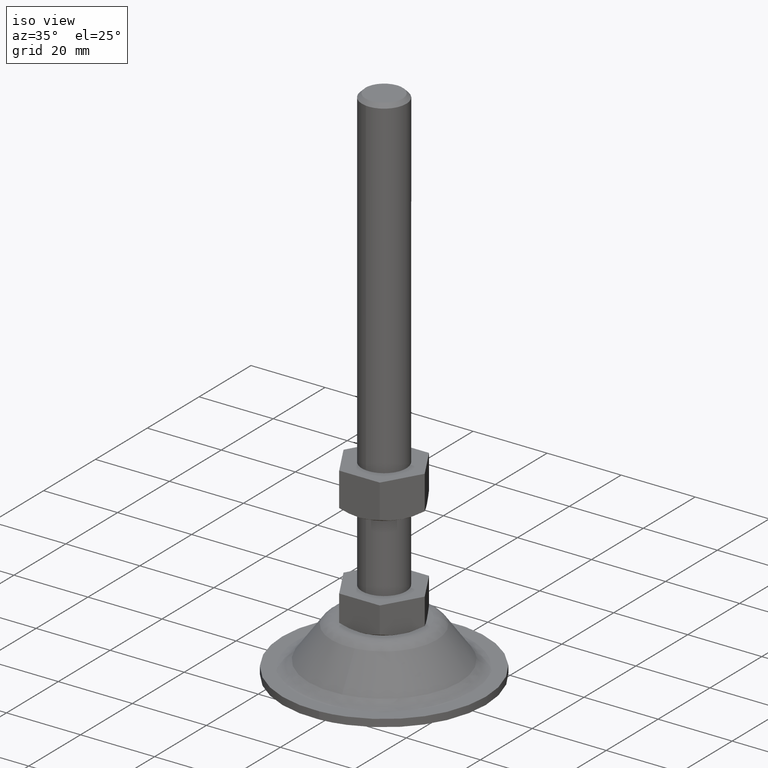
[diagram: clean part render]
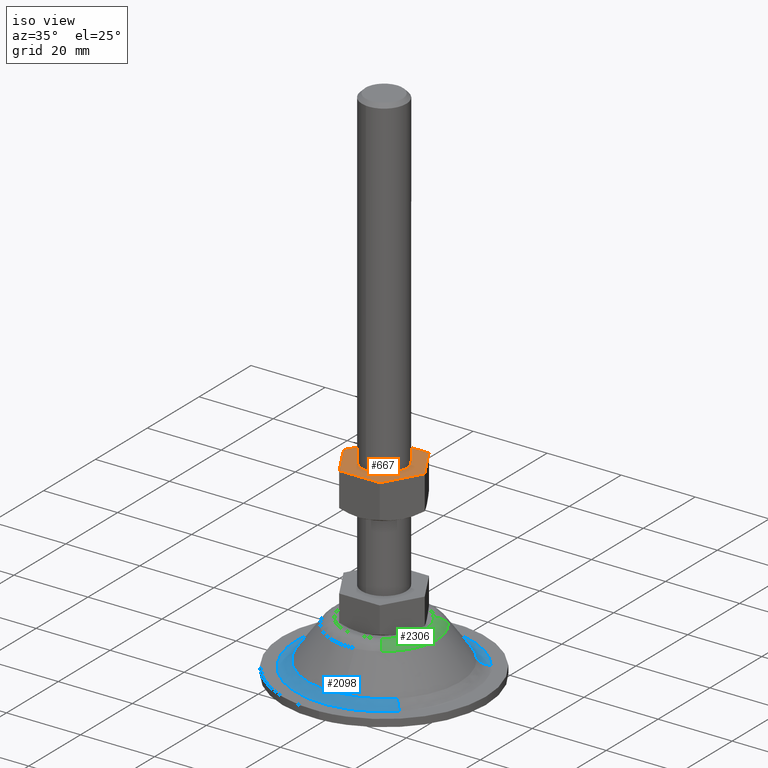
[diagram: same view with three faces highlighted in distinct colors, each labeled with its STEP entity id]
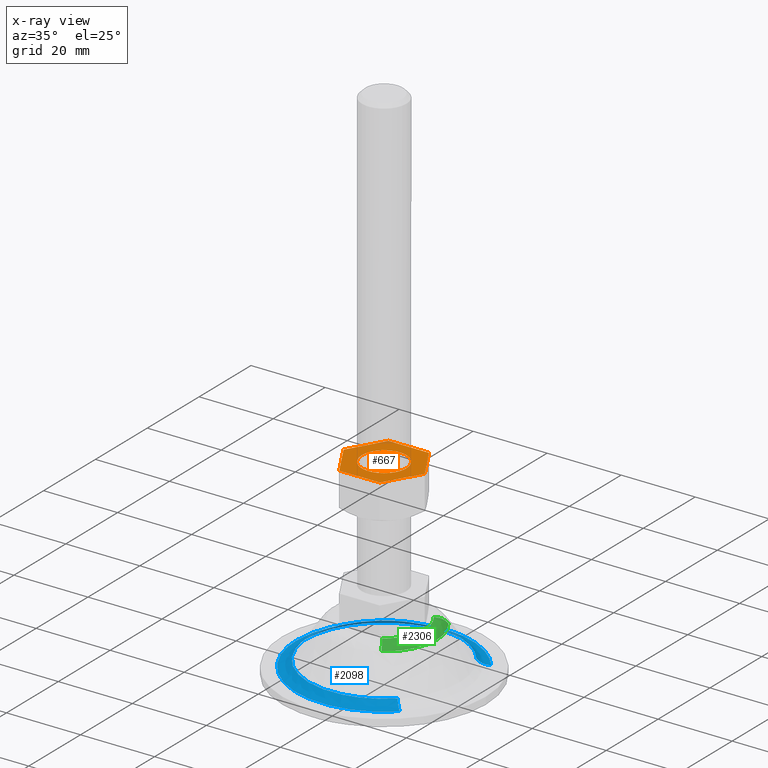
[diagram: x-ray of the same camera — body ghosted, the three highlighted faces saturated]
A machine part, iso view with three faces highlighted in distinct colors.
The next image is the same camera in x-ray (body ghosted, the three faces saturated) — at least one of them is partly hidden behind the body in this view.
Their STEP definitions:

[orange] entity #667 — the highlighted face is a freeform B-spline surface patch.
#96=CARTESIAN_POINT('',(0.470754574655435,5.981504002376072,52.0));
#97=VERTEX_POINT('',#96);
#103=CARTESIAN_POINT('',(-6.0,0.0,52.0));
#104=VERTEX_POINT('',#103);
#105=CARTESIAN_POINT('',(0.470754574655435,5.981504002376072,52.0));
#106=CARTESIAN_POINT('',(0.235740642335720,6.0,52.0));
#107=CARTESIAN_POINT('',(0.0,6.0,52.0));
#108=CARTESIAN_POINT('',(-6.0,6.0,52.000000000000007));
#109=CARTESIAN_POINT('',(-6.0,0.0,52.0));
#117=(BOUNDED_CURVE()B_SPLINE_CURVE(2,(#105,#106,#107,#108,#109),.UNSPECIFIED.,.F.,.U.)B_SPLINE_CURVE_WITH_KNOTS((3,2,3),(0.736331300616238,0.750000000000000,1.0),.UNSPECIFIED.)CURVE()GEOMETRIC_REPRESENTATION_ITEM()RATIONAL_B_SPLINE_CURVE((0.969723356137322,0.983986122561986,1.0,0.707106781186548,1.0))REPRESENTATION_ITEM(''));
#118=EDGE_CURVE('',#97,#104,#117,.T.);
#120=CARTESIAN_POINT('',(-0.470754574655436,-5.981504002376072,52.0));
#121=VERTEX_POINT('',#120);
#122=CARTESIAN_POINT('',(-6.0,0.0,52.0));
#123=CARTESIAN_POINT('',(-6.000000000000001,-5.546342949412817,52.000000000000007));
#124=CARTESIAN_POINT('',(-0.470754574655436,-5.981504002376072,52.000000000000007));
#132=(BOUNDED_CURVE()B_SPLINE_CURVE(2,(#122,#123,#124),.UNSPECIFIED.,.F.,.U.)B_SPLINE_CURVE_WITH_KNOTS((3,3),(0.0,0.236331300616238),.UNSPECIFIED.)CURVE()GEOMETRIC_REPRESENTATION_ITEM()RATIONAL_B_SPLINE_CURVE((1.0,0.723120658624561,0.969723356137322))REPRESENTATION_ITEM(''));
#133=EDGE_CURVE('',#104,#121,#132,.T.);
#179=CARTESIAN_POINT('',(6.0,0.0,52.0));
#180=VERTEX_POINT('',#179);
#181=CARTESIAN_POINT('',(-0.470754574655436,-5.981504002376072,52.0));
#182=CARTESIAN_POINT('',(-0.235740642335721,-5.999999999999999,52.0));
#183=CARTESIAN_POINT('',(0.0,-6.0,52.0));
#184=CARTESIAN_POINT('',(6.0,-6.0,52.000000000000007));
#185=CARTESIAN_POINT('',(6.0,0.0,52.0));
#193=(BOUNDED_CURVE()B_SPLINE_CURVE(2,(#181,#182,#183,#184,#185),.UNSPECIFIED.,.F.,.U.)B_SPLINE_CURVE_WITH_KNOTS((3,2,3),(0.236331300616238,0.250000000000000,0.500000000000000),.UNSPECIFIED.)CURVE()GEOMETRIC_REPRESENTATION_ITEM()RATIONAL_B_SPLINE_CURVE((0.969723356137322,0.983986122561986,1.0,0.707106781186548,1.0))REPRESENTATION_ITEM(''));
#194=EDGE_CURVE('',#121,#180,#193,.T.);
#196=CARTESIAN_POINT('',(6.0,0.0,52.0));
#197=CARTESIAN_POINT('',(6.0,5.546342949412848,52.000000000000007));
#198=CARTESIAN_POINT('',(0.470754574655435,5.981504002376072,52.0));
#206=(BOUNDED_CURVE()B_SPLINE_CURVE(2,(#196,#197,#198),.UNSPECIFIED.,.F.,.U.)B_SPLINE_CURVE_WITH_KNOTS((3,3),(0.500000000000000,0.736331300616239),.UNSPECIFIED.)CURVE()GEOMETRIC_REPRESENTATION_ITEM()RATIONAL_B_SPLINE_CURVE((1.0,0.723120658624560,0.969723356137324))REPRESENTATION_ITEM(''));
#207=EDGE_CURVE('',#180,#97,#206,.T.);
#612=CARTESIAN_POINT('',(-12.065523697927929,10.449049963174311,52.0));
#613=CARTESIAN_POINT('',(12.065524090233341,10.449049963174311,52.0));
#614=CARTESIAN_POINT('',(-12.065523697927929,-10.449050472794029,52.0));
#615=CARTESIAN_POINT('',(12.065524090233341,-10.449050472794029,52.0));
#616=B_SPLINE_SURFACE_WITH_KNOTS('',1,1,((#612,#614),(#613,#615)),.UNSPECIFIED.,.F.,.F.,.U.,(2,2),(2,2),(0.0,24.131047788161268),(0.0,20.898100435968342),.UNSPECIFIED.);
#617=CARTESIAN_POINT('',(10.969654999999999,0.0,52.0));
#618=VERTEX_POINT('',#617);
#619=CARTESIAN_POINT('',(5.484827999999999,9.500000000000000,52.0));
#620=VERTEX_POINT('',#619);
#621=CARTESIAN_POINT('',(10.969654999999999,0.0,52.0));
#622=CARTESIAN_POINT('',(5.484827999999999,9.500000000000000,52.0));
#623=QUASI_UNIFORM_CURVE('',1,(#621,#622),.UNSPECIFIED.,.F.,.U.);
#624=EDGE_CURVE('',#618,#620,#623,.T.);
#625=ORIENTED_EDGE('',*,*,#624,.T.);
#626=CARTESIAN_POINT('',(-5.484827000000000,9.500000000000000,52.0));
#627=VERTEX_POINT('',#626);
#628=CARTESIAN_POINT('',(5.484827999999999,9.500000000000000,52.0));
#629=CARTESIAN_POINT('',(-5.484827000000000,9.500000000000000,52.0));
#630=QUASI_UNIFORM_CURVE('',1,(#628,#629),.UNSPECIFIED.,.F.,.U.);
#631=EDGE_CURVE('',#620,#627,#630,.T.);
#632=ORIENTED_EDGE('',*,*,#631,.T.);
#633=CARTESIAN_POINT('',(-10.969655000000021,0.0,52.0));
#634=VERTEX_POINT('',#633);
#635=CARTESIAN_POINT('',(-5.484827000000000,9.500000000000000,52.0));
#636=CARTESIAN_POINT('',(-10.969655000000021,0.0,52.0));
#637=QUASI_UNIFORM_CURVE('',1,(#635,#636),.UNSPECIFIED.,.F.,.U.);
#638=EDGE_CURVE('',#627,#634,#637,.T.);
#639=ORIENTED_EDGE('',*,*,#638,.T.);
#640=CARTESIAN_POINT('',(-5.484827000000000,-9.500000000000000,52.0));
#641=VERTEX_POINT('',#640);
#642=CARTESIAN_POINT('',(-10.969655000000021,0.0,52.0));
#643=CARTESIAN_POINT('',(-5.484827000000000,-9.500000000000000,52.0));
#644=QUASI_UNIFORM_CURVE('',1,(#642,#643),.UNSPECIFIED.,.F.,.U.);
#645=EDGE_CURVE('',#634,#641,#644,.T.);
#646=ORIENTED_EDGE('',*,*,#645,.T.);
#647=CARTESIAN_POINT('',(5.484827999999999,-9.500000000000000,52.0));
#648=VERTEX_POINT('',#647);
#649=CARTESIAN_POINT('',(-5.484827000000000,-9.500000000000000,52.0));
#650=CARTESIAN_POINT('',(5.484827999999999,-9.500000000000000,52.0));
#651=QUASI_UNIFORM_CURVE('',1,(#649,#650),.UNSPECIFIED.,.F.,.U.);
#652=EDGE_CURVE('',#641,#648,#651,.T.);
#653=ORIENTED_EDGE('',*,*,#652,.T.);
#654=CARTESIAN_POINT('',(5.484827999999999,-9.500000000000000,52.0));
#655=CARTESIAN_POINT('',(10.969654999999999,0.0,52.0));
#656=QUASI_UNIFORM_CURVE('',1,(#654,#655),.UNSPECIFIED.,.F.,.U.);
#657=EDGE_CURVE('',#648,#618,#656,.T.);
#658=ORIENTED_EDGE('',*,*,#657,.T.);
#659=EDGE_LOOP('',(#625,#632,#639,#646,#653,#658));
#660=FACE_OUTER_BOUND('',#659,.T.);
#661=ORIENTED_EDGE('',*,*,#207,.F.);
#662=ORIENTED_EDGE('',*,*,#194,.F.);
#663=ORIENTED_EDGE('',*,*,#133,.F.);
#664=ORIENTED_EDGE('',*,*,#118,.F.);
#665=EDGE_LOOP('',(#661,#662,#663,#664));
#666=FACE_BOUND('',#665,.T.);
#667=ADVANCED_FACE('',(#660,#666),#616,.F.);

[blue] entity #2098 — the highlighted face is a freeform B-spline surface patch.
#1455=CARTESIAN_POINT('',(2.834919144682631,-20.270669623452591,3.667770001969626));
#1456=VERTEX_POINT('',#1455);
#1457=CARTESIAN_POINT('',(-20.467946000000001,0.0,3.667770000000105));
#1458=VERTEX_POINT('',#1457);
#1459=CARTESIAN_POINT('',(2.834919144682631,-20.270669623452591,3.667770001969627));
#1460=CARTESIAN_POINT('',(1.424323605987998,-20.467945999999998,3.667770000000105));
#1461=CARTESIAN_POINT('',(0.0,-20.467946000000001,3.667770000000105));
#1462=CARTESIAN_POINT('',(-20.467946000000001,-20.467946000000001,3.667770000000106));
#1463=CARTESIAN_POINT('',(-20.467946000000001,0.0,3.667770000000105));
#1471=(BOUNDED_CURVE()B_SPLINE_CURVE(2,(#1459,#1460,#1461,#1462,#1463),.UNSPECIFIED.,.F.,.U.)B_SPLINE_CURVE_WITH_KNOTS((3,2,3),(0.726086221407573,0.750000000000000,1.0),.UNSPECIFIED.)CURVE()GEOMETRIC_REPRESENTATION_ITEM()RATIONAL_B_SPLINE_CURVE((0.949326419168402,0.971983265656287,1.0,0.707106781186547,1.0))REPRESENTATION_ITEM(''));
#1472=EDGE_CURVE('',#1456,#1458,#1471,.T.);
#1513=CARTESIAN_POINT('',(-7.501527317558050,19.043736538898099,3.667769999996160));
#1514=VERTEX_POINT('',#1513);
#1520=CARTESIAN_POINT('',(-20.467946000000001,0.0,3.667770000000105));
#1521=CARTESIAN_POINT('',(-20.467946000000005,13.936128388624134,3.667770000000105));
#1522=CARTESIAN_POINT('',(-7.501527317558050,19.043736538898099,3.667769999996160));
#1530=(BOUNDED_CURVE()B_SPLINE_CURVE(2,(#1520,#1521,#1522),.UNSPECIFIED.,.F.,.U.)B_SPLINE_CURVE_WITH_KNOTS((3,3),(0.0,0.187769642892128),.UNSPECIFIED.)CURVE()GEOMETRIC_REPRESENTATION_ITEM()RATIONAL_B_SPLINE_CURVE((1.0,0.780014179591489,0.890481630698481))REPRESENTATION_ITEM(''));
#1531=EDGE_CURVE('',#1458,#1514,#1530,.T.);
#1558=CARTESIAN_POINT('',(14.050391366811169,-14.883659559066530,3.667770102130005));
#1559=VERTEX_POINT('',#1558);
#1560=CARTESIAN_POINT('',(14.050391366811171,-14.883659559066524,3.667770102130005));
#1561=CARTESIAN_POINT('',(9.301978442086993,-19.366230347659744,3.667770020149164));
#1562=CARTESIAN_POINT('',(2.834919144682631,-20.270669623452591,3.667770001969627));
#1570=(BOUNDED_CURVE()B_SPLINE_CURVE(2,(#1560,#1561,#1562),.UNSPECIFIED.,.F.,.U.)B_SPLINE_CURVE_WITH_KNOTS((3,3),(0.629344514439606,0.726086221407573),.UNSPECIFIED.)CURVE()GEOMETRIC_REPRESENTATION_ITEM()RATIONAL_B_SPLINE_CURVE((0.853730296276494,0.857669553011610,0.949326419168402))REPRESENTATION_ITEM(''));
#1571=EDGE_CURVE('',#1559,#1456,#1570,.T.);
#1588=CARTESIAN_POINT('',(16.406429878564680,12.237886993575490,3.667770102231101));
#1589=VERTEX_POINT('',#1588);
#1603=CARTESIAN_POINT('',(-7.501527317558050,19.043736538898099,3.667769999996160));
#1604=CARTESIAN_POINT('',(-3.885960966172552,20.467946000000005,3.667770000000105));
#1605=CARTESIAN_POINT('',(0.0,20.467946000000001,3.667770000000105));
#1606=CARTESIAN_POINT('',(10.267462668662867,20.467945999999998,3.667770000000106));
#1607=CARTESIAN_POINT('',(16.406429878564683,12.237886993575490,3.667770102231101));
#1615=(BOUNDED_CURVE()B_SPLINE_CURVE(2,(#1603,#1604,#1605,#1606,#1607),.UNSPECIFIED.,.F.,.U.)B_SPLINE_CURVE_WITH_KNOTS((3,2,3),(0.187769642892128,0.250000000000000,0.396843395504091),.UNSPECIFIED.)CURVE()GEOMETRIC_REPRESENTATION_ITEM()RATIONAL_B_SPLINE_CURVE((0.890481630698481,0.927092601595059,1.0,0.827962260917240,0.858025367928554))REPRESENTATION_ITEM(''));
#1616=EDGE_CURVE('',#1514,#1589,#1615,.T.);
#1995=CARTESIAN_POINT('',(16.405776289490081,-17.378736141767178,2.004119559770407));
#1996=CARTESIAN_POINT('',(15.399099572882557,-18.329053407290843,2.004119559770407));
#1997=CARTESIAN_POINT('',(14.289428316434652,-19.156779581532884,2.004119559770408));
#1998=CARTESIAN_POINT('',(-4.867351265098234,-33.446207897967540,2.004119559770407));
#1999=CARTESIAN_POINT('',(-19.156779581532884,-14.289428316434652,2.004119559770408));
#2000=CARTESIAN_POINT('',(-33.446207897967540,4.867351265098233,2.004119559770407));
#2001=CARTESIAN_POINT('',(-14.289428316434652,19.156779581532884,2.004119559770408));
#2002=CARTESIAN_POINT('',(4.867351265098233,33.446207897967554,2.004119559770407));
#2003=CARTESIAN_POINT('',(19.156779581532884,14.289428316434662,2.004119559770408));
#2004=CARTESIAN_POINT('',(14.837020421085141,-15.716943744578176,1.900321956848006));
#2005=CARTESIAN_POINT('',(13.926604312869332,-16.576389614513449,1.900321956848007));
#2006=CARTESIAN_POINT('',(12.923042225828311,-17.324966818882828,1.900321956848005));
#2007=CARTESIAN_POINT('',(-4.401924593054519,-30.248009044711146,1.900321956848005));
#2008=CARTESIAN_POINT('',(-17.324966818882828,-12.923042225828311,1.900321956848005));
#2009=CARTESIAN_POINT('',(-30.248009044711146,4.401924593054519,1.900321956848005));
#2010=CARTESIAN_POINT('',(-12.923042225828311,17.324966818882828,1.900321956848005));
#2011=CARTESIAN_POINT('',(4.401924593054516,30.248009044711146,1.900321956848005));
#2012=CARTESIAN_POINT('',(17.324966818882828,12.923042225828311,1.900321956848005));
#2013=CARTESIAN_POINT('',(13.980145791904778,-14.809251366946535,3.817398717397503));
#2014=CARTESIAN_POINT('',(13.122308465882906,-15.619062112025144,3.817398717397503));
#2015=CARTESIAN_POINT('',(12.176704571712646,-16.324407131211622,3.817398717397502));
#2016=CARTESIAN_POINT('',(-4.147702559498967,-28.501111702924277,3.817398717397502));
#2017=CARTESIAN_POINT('',(-16.324407131211622,-12.176704571712646,3.817398717397502));
#2018=CARTESIAN_POINT('',(-28.501111702924277,4.147702559498966,3.817398717397502));
#2019=CARTESIAN_POINT('',(-12.176704571712659,16.324407131211622,3.817398717397502));
#2020=CARTESIAN_POINT('',(4.147702559498964,28.501111702924277,3.817398717397502));
#2021=CARTESIAN_POINT('',(16.324407131211622,12.176704571712659,3.817398717397502));
#2029=(BOUNDED_SURFACE()B_SPLINE_SURFACE(2,2,((#1995,#2004,#2013),(#1996,#2005,#2014),(#1997,#2006,#2015),(#1998,#2007,#2016),(#1999,#2008,#2017),(#2000,#2009,#2018),(#2001,#2010,#2019),(#2002,#2011,#2020),(#2003,#2012,#2021)),.UNSPECIFIED.,.F.,.F.,.U.)B_SPLINE_SURFACE_WITH_KNOTS((3,2,2,2,3),(3,3),(0.0,3.167791287386891,42.765220142773920,82.362648998160950,121.960077853548000),(0.0,4.252147185758799),.UNSPECIFIED.)GEOMETRIC_REPRESENTATION_ITEM()RATIONAL_B_SPLINE_SURFACE(((0.884520655512478,0.768407639776256,0.885876845392710),(0.902714562178246,0.784213191395911,0.904098647836772),(0.924373970941110,0.803029320858459,0.925791265853476),(0.653631103204796,0.567827478270644,0.654633282048271),(0.924373970941110,0.803029320858459,0.925791265853476),(0.653631103204796,0.567827478270644,0.654633282048271),(0.924373970941110,0.803029320858459,0.925791265853476),(0.653631103204796,0.567827478270644,0.654633282048271),(0.924373970941110,0.803029320858459,0.925791265853476)))REPRESENTATION_ITEM('')SURFACE());
#2030=CARTESIAN_POINT('',(16.281191255193271,-17.246758580056419,2.000000000000001));
#2031=VERTEX_POINT('',#2030);
#2032=CARTESIAN_POINT('',(-23.717669999999998,0.0,2.0));
#2033=VERTEX_POINT('',#2032);
#2034=CARTESIAN_POINT('',(16.281191255193267,-17.246758580056426,2.000000000000001));
#2035=CARTESIAN_POINT('',(9.426517951963067,-23.717670000000005,2.000000000000000));
#2036=CARTESIAN_POINT('',(0.0,-23.717669999999998,2.0));
#2037=CARTESIAN_POINT('',(-23.717669999999995,-23.717669999999995,2.0));
#2038=CARTESIAN_POINT('',(-23.717669999999998,0.0,2.0));
#2046=(BOUNDED_CURVE()B_SPLINE_CURVE(2,(#2034,#2035,#2036,#2037,#2038),.UNSPECIFIED.,.F.,.U.)B_SPLINE_CURVE_WITH_KNOTS((3,2,3),(0.629344514439826,0.750000000000000,1.0),.UNSPECIFIED.)CURVE()GEOMETRIC_REPRESENTATION_ITEM()RATIONAL_B_SPLINE_CURVE((0.853730296276512,0.858643305867123,1.0,0.707106781186547,1.0))REPRESENTATION_ITEM(''));
#2047=EDGE_CURVE('',#2031,#2033,#2046,.T.);
#2048=ORIENTED_EDGE('',*,*,#2047,.F.);
#2049=CARTESIAN_POINT('',(16.281191255193274,-17.246758580056426,2.000000000000001));
#2050=CARTESIAN_POINT('',(14.872019535031384,-15.754014954934567,2.000000000475347));
#2051=CARTESIAN_POINT('',(14.050391366811168,-14.883659559066523,3.667770102130005));
#2059=(BOUNDED_CURVE()B_SPLINE_CURVE(2,(#2049,#2050,#2051),.UNSPECIFIED.,.F.,.U.)B_SPLINE_CURVE_WITH_KNOTS((3,3),(-1.605258366161555,-0.386961544734559),.UNSPECIFIED.)CURVE()GEOMETRIC_REPRESENTATION_ITEM()RATIONAL_B_SPLINE_CURVE((0.874456204702265,0.778533618371845,0.875689209168537))REPRESENTATION_ITEM(''));
#2060=EDGE_CURVE('',#2031,#1559,#2059,.T.);
#2061=ORIENTED_EDGE('',*,*,#2060,.T.);
#2062=ORIENTED_EDGE('',*,*,#1571,.T.);
#2063=ORIENTED_EDGE('',*,*,#1472,.T.);
#2064=ORIENTED_EDGE('',*,*,#1531,.T.);
#2065=ORIENTED_EDGE('',*,*,#1616,.T.);
#2066=CARTESIAN_POINT('',(19.011301229705619,14.180913079219531,2.000000000000001));
#2067=VERTEX_POINT('',#2066);
#2068=CARTESIAN_POINT('',(19.011301229705616,14.180913079219529,2.000000000000001));
#2069=CARTESIAN_POINT('',(17.365832686354999,12.953524900713569,2.000000000474175));
#2070=CARTESIAN_POINT('',(16.406429878564683,12.237886993575497,3.667770102231102));
#2078=(BOUNDED_CURVE()B_SPLINE_CURVE(2,(#2068,#2069,#2070),.UNSPECIFIED.,.F.,.U.)B_SPLINE_CURVE_WITH_KNOTS((3,3),(-1.605258366162317,-0.386961544651493),.UNSPECIFIED.)CURVE()GEOMETRIC_REPRESENTATION_ITEM()RATIONAL_B_SPLINE_CURVE((0.913856088074369,0.813611571497499,0.915144647345907))REPRESENTATION_ITEM(''));
#2079=EDGE_CURVE('',#2067,#1589,#2078,.T.);
#2080=ORIENTED_EDGE('',*,*,#2079,.F.);
#2081=CARTESIAN_POINT('',(-23.717669999999998,0.0,2.0));
#2082=CARTESIAN_POINT('',(-23.717669999999995,23.717669999999995,2.0));
#2083=CARTESIAN_POINT('',(0.0,23.717669999999998,2.0));
#2084=CARTESIAN_POINT('',(11.897641869625001,23.717669999999995,2.000000000000000));
#2085=CARTESIAN_POINT('',(19.011301229705623,14.180913079219529,2.000000000000001));
#2093=(BOUNDED_CURVE()B_SPLINE_CURVE(2,(#2081,#2082,#2083,#2084,#2085),.UNSPECIFIED.,.F.,.U.)B_SPLINE_CURVE_WITH_KNOTS((3,2,3),(0.0,0.250000000000000,0.396843395505168),.UNSPECIFIED.)CURVE()GEOMETRIC_REPRESENTATION_ITEM()RATIONAL_B_SPLINE_CURVE((1.0,0.707106781186547,1.0,0.827962260915978,0.858025367928996))REPRESENTATION_ITEM(''));
#2094=EDGE_CURVE('',#2033,#2067,#2093,.T.);
#2095=ORIENTED_EDGE('',*,*,#2094,.F.);
#2096=EDGE_LOOP('',(#2048,#2061,#2062,#2063,#2064,#2065,#2080,#2095));
#2097=FACE_OUTER_BOUND('',#2096,.T.);
#2098=ADVANCED_FACE('',(#2097),#2029,.F.);

[green] entity #2306 — the highlighted face is a freeform B-spline surface patch.
#1619=CARTESIAN_POINT('',(11.528268955431900,8.375777670469155,12.332229066611180));
#1620=VERTEX_POINT('',#1619);
#1636=CARTESIAN_POINT('',(14.249724000000020,0.0,12.332229000000099));
#1637=VERTEX_POINT('',#1636);
#1638=CARTESIAN_POINT('',(11.528268955431901,8.375777670469155,12.332229066611180));
#1639=CARTESIAN_POINT('',(14.249724000000024,4.630015993539949,12.332229000000105));
#1640=CARTESIAN_POINT('',(14.249724000000020,0.0,12.332229000000099));
#1648=(BOUNDED_CURVE()B_SPLINE_CURVE(2,(#1638,#1639,#1640),.UNSPECIFIED.,.F.,.U.)B_SPLINE_CURVE_WITH_KNOTS((3,3),(0.398750340998636,0.500000000000000),.UNSPECIFIED.)CURVE()GEOMETRIC_REPRESENTATION_ITEM()RATIONAL_B_SPLINE_CURVE((0.858840265005753,0.881378645885304,1.0))REPRESENTATION_ITEM(''));
#1649=EDGE_CURVE('',#1620,#1637,#1648,.T.);
#1651=CARTESIAN_POINT('',(7.702739872209295,-11.988429219784770,12.332229066473920));
#1652=VERTEX_POINT('',#1651);
#1653=CARTESIAN_POINT('',(14.249724000000020,0.0,12.332229000000099));
#1654=CARTESIAN_POINT('',(14.249724000000022,-7.781896731665202,12.332229000000098));
#1655=CARTESIAN_POINT('',(7.702739872209295,-11.988429219784766,12.332229066473927));
#1663=(BOUNDED_CURVE()B_SPLINE_CURVE(2,(#1653,#1654,#1655),.UNSPECIFIED.,.F.,.U.)B_SPLINE_CURVE_WITH_KNOTS((3,3),(0.500000000000000,0.657460173955077),.UNSPECIFIED.)CURVE()GEOMETRIC_REPRESENTATION_ITEM()RATIONAL_B_SPLINE_CURVE((1.0,0.815523931261485,0.863428933515893))REPRESENTATION_ITEM(''));
#1664=EDGE_CURVE('',#1637,#1652,#1663,.T.);
#2180=CARTESIAN_POINT('',(5.946089766974581,-9.254405249026023,14.0));
#2181=VERTEX_POINT('',#2180);
#2199=CARTESIAN_POINT('',(8.899186942479124,6.465637778832214,14.0));
#2200=VERTEX_POINT('',#2199);
#2216=CARTESIAN_POINT('',(8.899186942479124,6.465637778832214,14.000000000000004));
#2217=CARTESIAN_POINT('',(10.559949391069967,7.672252326196648,13.999999994202970));
#2218=CARTESIAN_POINT('',(11.528268955431903,8.375777670469155,12.332229066611180));
#2226=(BOUNDED_CURVE()B_SPLINE_CURVE(2,(#2216,#2217,#2218),.UNSPECIFIED.,.F.,.U.)B_SPLINE_CURVE_WITH_KNOTS((3,3),(-1.618740152429585,-0.390319360376319),.UNSPECIFIED.)CURVE()GEOMETRIC_REPRESENTATION_ITEM()RATIONAL_B_SPLINE_CURVE((0.917291947998200,0.815431626772725,0.915800522428141))REPRESENTATION_ITEM(''));
#2227=EDGE_CURVE('',#2200,#1620,#2226,.T.);
#2233=CARTESIAN_POINT('',(5.946089766974581,-9.254405249026023,13.999999999999996));
#2234=CARTESIAN_POINT('',(7.055746488739596,-10.981458387150546,13.999999998594744));
#2235=CARTESIAN_POINT('',(7.702739872209295,-11.988429219784765,12.332229066473918));
#2243=(BOUNDED_CURVE()B_SPLINE_CURVE(2,(#2233,#2234,#2235),.UNSPECIFIED.,.F.,.U.)B_SPLINE_CURVE_WITH_KNOTS((3,3),(-1.618740155309880,-0.390319360262773),.UNSPECIFIED.)CURVE()GEOMETRIC_REPRESENTATION_ITEM()RATIONAL_B_SPLINE_CURVE((0.896658200657825,0.797089145082900,0.895200323062853))REPRESENTATION_ITEM(''));
#2244=EDGE_CURVE('',#2181,#1652,#2243,.T.);
#2249=CARTESIAN_POINT('',(8.752588906192633,6.359128070496875,13.995893479540475));
#2250=CARTESIAN_POINT('',(15.111716976689509,-2.393460835695761,13.995893479540477));
#2251=CARTESIAN_POINT('',(6.359128070496875,-8.752588906192633,13.995893479540475));
#2252=CARTESIAN_POINT('',(6.108632978091093,-8.934584243882069,13.995893479540477));
#2253=CARTESIAN_POINT('',(5.848139178864972,-9.101955313140811,13.995893479540486));
#2254=CARTESIAN_POINT('',(10.601433560269035,7.702392339358740,14.099526789685839));
#2255=CARTESIAN_POINT('',(18.303825899627778,-2.899041220910297,14.099526789685839));
#2256=CARTESIAN_POINT('',(7.702392339358740,-10.601433560269035,14.099526789685839));
#2257=CARTESIAN_POINT('',(7.398984158330787,-10.821872507130594,14.099526789685843));
#2258=CARTESIAN_POINT('',(7.083465203315789,-11.024598042360788,14.099526789685848));
#2259=CARTESIAN_POINT('',(11.611181162287151,8.436016914776335,12.182359588724589));
#2260=CARTESIAN_POINT('',(20.047198077063484,-3.175164247510819,12.182359588724589));
#2261=CARTESIAN_POINT('',(8.436016914776335,-11.611181162287151,12.182359588724589));
#2262=CARTESIAN_POINT('',(8.103710219082043,-11.852616109049999,12.182359588724594));
#2263=CARTESIAN_POINT('',(7.758139242667631,-12.074650506794182,12.182359588724596));
#2271=(BOUNDED_SURFACE()B_SPLINE_SURFACE(2,2,((#2249,#2254,#2259),(#2250,#2255,#2260),(#2251,#2256,#2261),(#2252,#2257,#2262),(#2253,#2258,#2263)),.UNSPECIFIED.,.F.,.F.,.U.)B_SPLINE_SURFACE_WITH_KNOTS((3,2,3),(3,3),(0.0,23.779518828556629,24.730698674582239),(0.0,4.252147818302703),.UNSPECIFIED.)GEOMETRIC_REPRESENTATION_ITEM()RATIONAL_B_SPLINE_SURFACE(((0.927972367260647,0.804825693950045,0.926331968535603),(0.656175553643737,0.569097705865245,0.655015616581409),(0.927972367260647,0.804825693950045,0.926331968535603),(0.917100505084196,0.795396583418962,0.915479324807333),(0.907098391052404,0.786721801010981,0.905494891749333)))REPRESENTATION_ITEM('')SURFACE());
#2272=CARTESIAN_POINT('',(11.0,0.0,14.0));
#2273=VERTEX_POINT('',#2272);
#2274=CARTESIAN_POINT('',(11.0,0.0,14.0));
#2275=CARTESIAN_POINT('',(11.0,-6.007194528646987,13.999999999999996));
#2276=CARTESIAN_POINT('',(5.946089766974581,-9.254405249026023,14.000000000000002));
#2284=(BOUNDED_CURVE()B_SPLINE_CURVE(2,(#2274,#2275,#2276),.UNSPECIFIED.,.F.,.U.)B_SPLINE_CURVE_WITH_KNOTS((3,3),(0.500000000000000,0.657460173953896),.UNSPECIFIED.)CURVE()GEOMETRIC_REPRESENTATION_ITEM()RATIONAL_B_SPLINE_CURVE((1.0,0.815523931262869,0.863428933515174))REPRESENTATION_ITEM(''));
#2285=EDGE_CURVE('',#2273,#2181,#2284,.T.);
#2286=ORIENTED_EDGE('',*,*,#2285,.T.);
#2287=ORIENTED_EDGE('',*,*,#2244,.T.);
#2288=ORIENTED_EDGE('',*,*,#1664,.F.);
#2289=ORIENTED_EDGE('',*,*,#1649,.F.);
#2290=ORIENTED_EDGE('',*,*,#2227,.F.);
#2291=CARTESIAN_POINT('',(8.899186942479124,6.465637778832214,14.000000000000004));
#2292=CARTESIAN_POINT('',(11.0,3.574116658965474,14.000000000000002));
#2293=CARTESIAN_POINT('',(11.0,0.0,14.0));
#2301=(BOUNDED_CURVE()B_SPLINE_CURVE(2,(#2291,#2292,#2293),.UNSPECIFIED.,.F.,.U.)B_SPLINE_CURVE_WITH_KNOTS((3,3),(0.398750340989663,0.500000000000000),.UNSPECIFIED.)CURVE()GEOMETRIC_REPRESENTATION_ITEM()RATIONAL_B_SPLINE_CURVE((0.858840265001758,0.881378645874792,1.0))REPRESENTATION_ITEM(''));
#2302=EDGE_CURVE('',#2200,#2273,#2301,.T.);
#2303=ORIENTED_EDGE('',*,*,#2302,.T.);
#2304=EDGE_LOOP('',(#2286,#2287,#2288,#2289,#2290,#2303));
#2305=FACE_OUTER_BOUND('',#2304,.T.);
#2306=ADVANCED_FACE('',(#2305),#2271,.T.);